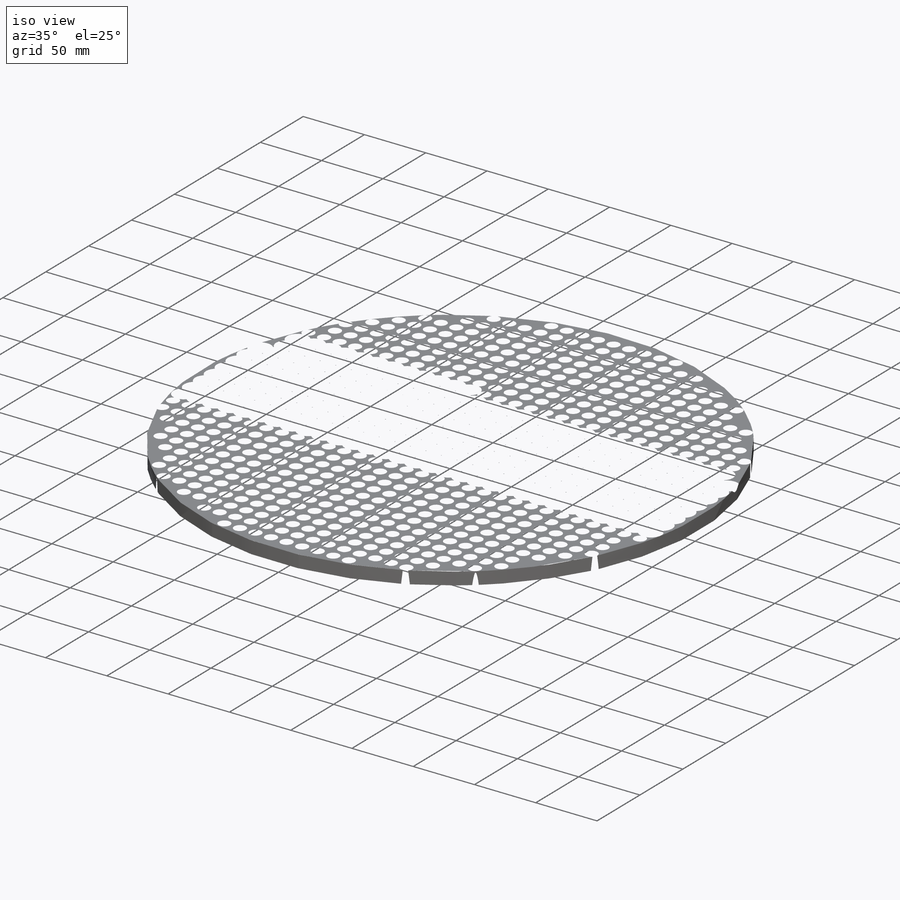
[diagram: iso view]
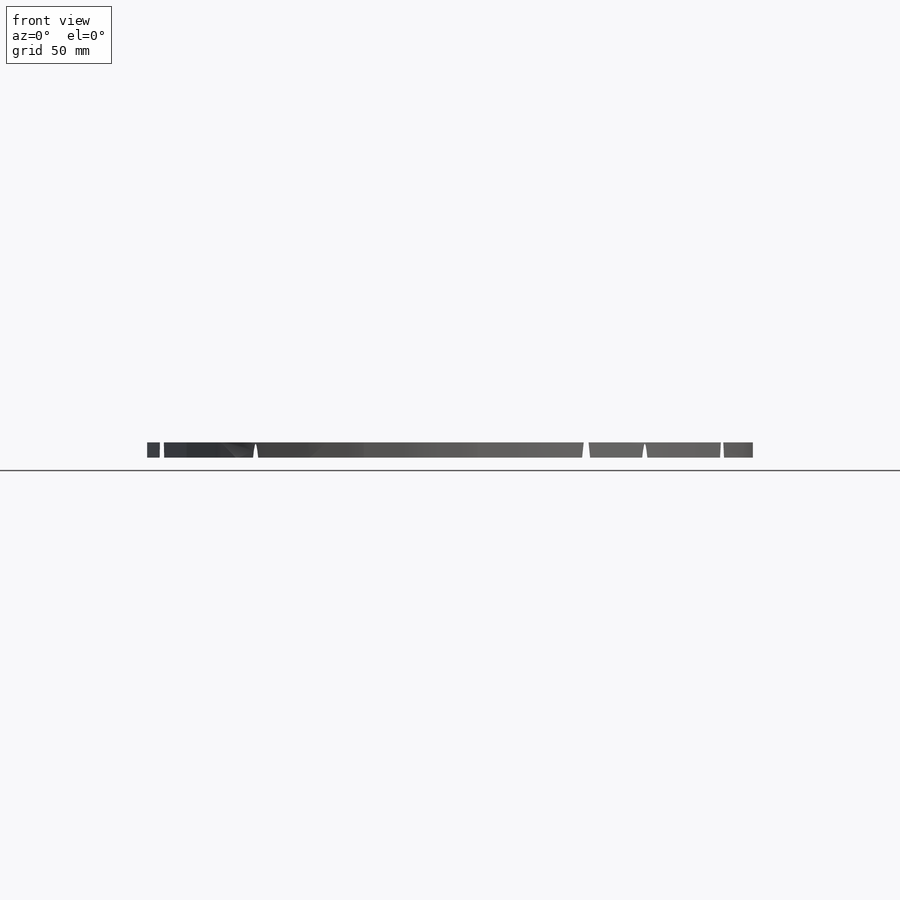
[diagram: front view]
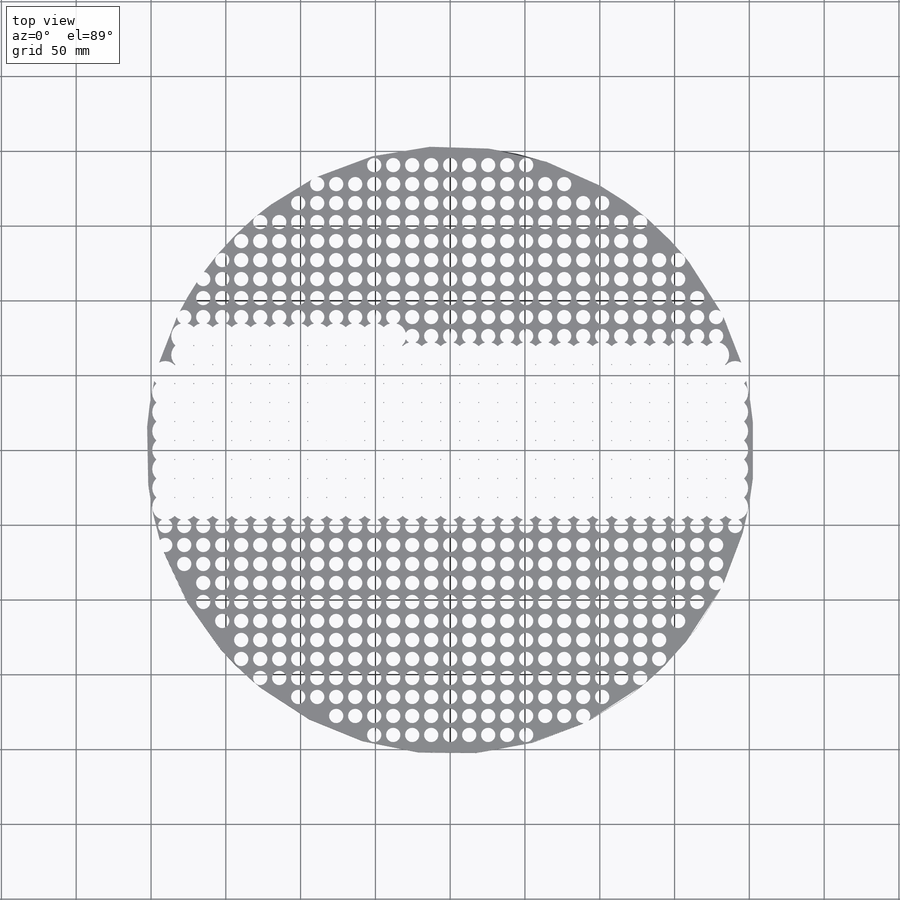
[diagram: top view]
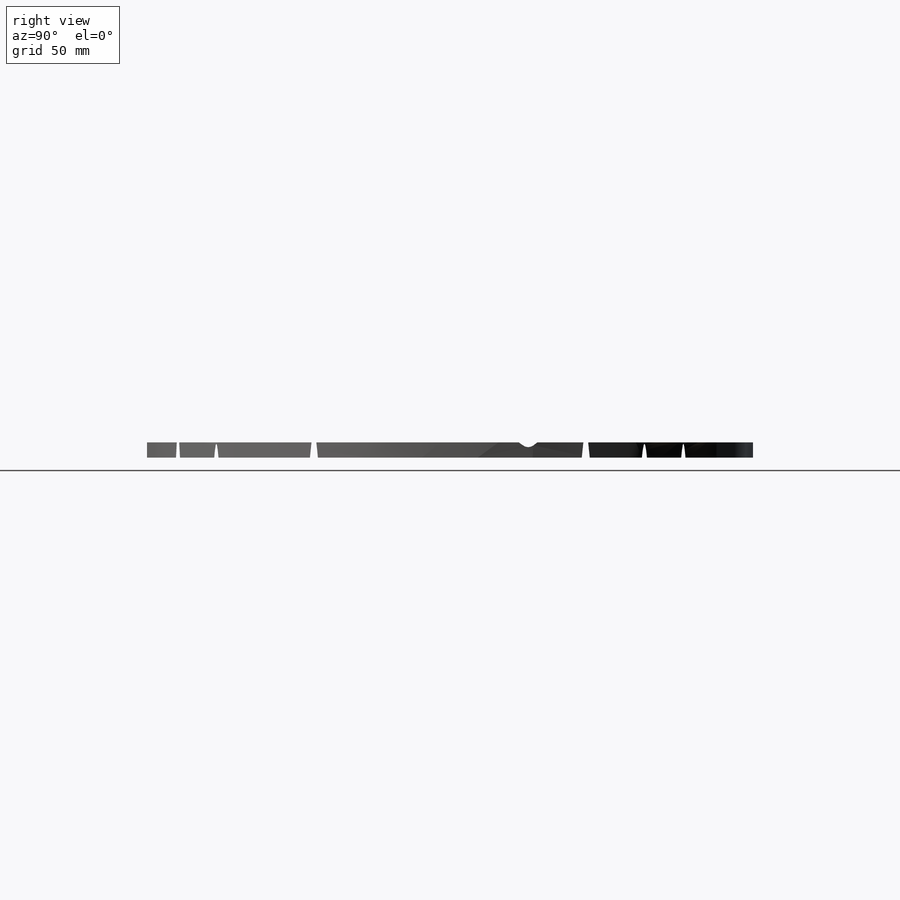
[diagram: right view]
SOLIDWORKS PART (.sldprt)
format: sldprt  version: not decoded by parser v0  size: 4,500,480 bytes
history: native  units: mm
features: sketch x5, cut_extrude x4, fillet x3, material x1, chamfer x1 (+13 scaffold rows collapsed)
feature tree (27):
  scaffold x13  (default folders/planes/origin — collapsed)
  material  "Material <not specified>"
  sketch  "3DSketch1"  dims[c1.D1=~109.958674mm c2.D1=10.16mm]
  sketch  "Sketch11"  dims[D1=12.7mm]
  cut_extrude  "Cut-Extrude1"  Depth=10.16mm
  sketch  "Sketch12"  dims[D1=12.7mm]
  cut_extrude  "Cut-Extrude2"  Depth=10.16mm
  sketch  "Sketch13"  dims[D1=6.35mm]
  cut_extrude  "Cut-Extrude3"  Depth=10.16mm
  sketch  "Sketch14"  dims[D1=6.35mm]
  cut_extrude  "Cut-Extrude5"  Depth=10.16mm
  chamfer  "Chamfer1"  Distance=3.937mm Angle=50deg
  fillet  "Fillet1"  Radius=2.54mm
  fillet  "Fillet2"  Radius=2.54mm
  fillet  "Fillet3"  Radius=2.54mm
decode coverage: 13 of 13 modeling features carry decoded parameters
note: ~ marks probable driven/reference dimensions
note: suppression state not decoded; provenance and decode notes live in map.json
